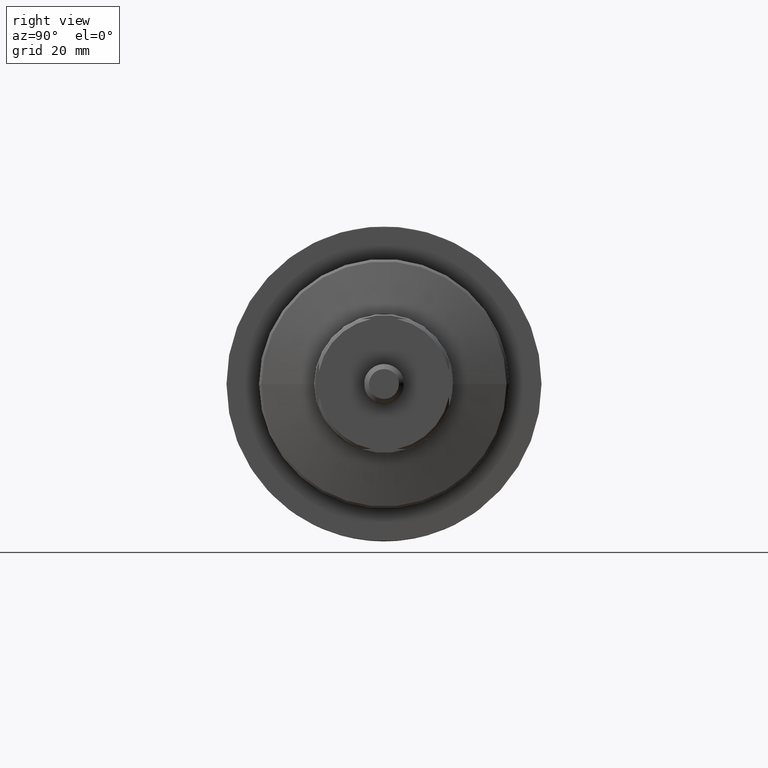
[diagram: clean part render]
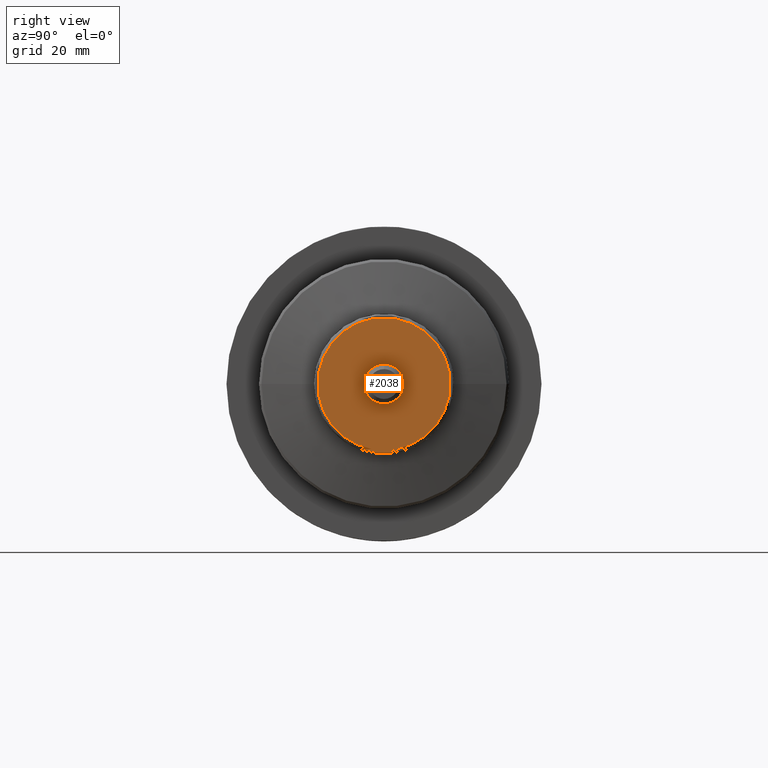
[diagram: same view with one face highlighted and labeled with its STEP entity id]
A machine part, right view. The second image highlights one B-rep face of the part: STEP entity #2038.
In plain terms, the highlighted planar face has unit normal (-1, -0, 0).
Its self-contained STEP definition (entity closure, byte-faithful):
#7 = AXIS2_PLACEMENT_3D ( 'NONE', #2759, #2353, #254 ) ;
#17 = DIRECTION ( 'NONE',  ( 0.000000000000000000, -3.872912908332386132E-16, 1.000000000000000000 ) ) ;
#44 = ORIENTED_EDGE ( 'NONE', *, *, #1556, .F. ) ;
#79 = ORIENTED_EDGE ( 'NONE', *, *, #1916, .F. ) ;
#95 = VECTOR ( 'NONE', #17, 1000.000000000000000 ) ;
#114 = EDGE_CURVE ( 'NONE', #1419, #2105, #1397, .T. ) ;
#155 = CARTESIAN_POINT ( 'NONE',  ( 104.0000000000000568, 2.561737691489861746, 13.00000000000000000 ) ) ;
#163 = LINE ( 'NONE', #2048, #2071 ) ;
#167 = LINE ( 'NONE', #1841, #2514 ) ;
#254 = DIRECTION ( 'NONE',  ( 1.069542322069065801E-17, -1.000000000000000000, 0.000000000000000000 ) ) ;
#295 = CARTESIAN_POINT ( 'NONE',  ( 104.0000000000000142, -13.00000000000171951, -2.561737691481324575 ) ) ;
#316 = AXIS2_PLACEMENT_3D ( 'NONE', #1639, #1883, #349 ) ;
#325 = AXIS2_PLACEMENT_3D ( 'NONE', #552, #2445, #2490 ) ;
#330 = ORIENTED_EDGE ( 'NONE', *, *, #2259, .T. ) ;
#349 = DIRECTION ( 'NONE',  ( 0.000000000000000000, -1.000000000000000000, 0.000000000000000000 ) ) ;
#379 = VERTEX_POINT ( 'NONE', #2222 ) ;
#445 = AXIS2_PLACEMENT_3D ( 'NONE', #2280, #2715, #1647 ) ;
#511 = VERTEX_POINT ( 'NONE', #2286 ) ;
#552 = CARTESIAN_POINT ( 'NONE',  ( 104.0000000000000142, 1.112324014951828568E-15, 0.000000000000000000 ) ) ;
#643 = VERTEX_POINT ( 'NONE', #155 ) ;
#644 = CARTESIAN_POINT ( 'NONE',  ( 103.9999999999997868, -13.00000000000171951, -4.479118216792240759 ) ) ;
#645 = DIRECTION ( 'NONE',  ( 0.000000000000000000, -1.000000000000000000, 0.000000000000000000 ) ) ;
#726 = DIRECTION ( 'NONE',  ( 1.000000000000000000, 1.069542322069065801E-17, 0.000000000000000000 ) ) ;
#771 = DIRECTION ( 'NONE',  ( -1.549165163332954492E-14, -1.000000000000000000, -1.936456454166193066E-16 ) ) ;
#789 = LINE ( 'NONE', #2472, #1365 ) ;
#793 = DIRECTION ( 'NONE',  ( 0.000000000000000000, -1.000000000000000000, 0.000000000000000000 ) ) ;
#852 = ORIENTED_EDGE ( 'NONE', *, *, #2570, .T. ) ;
#868 = FACE_BOUND ( 'NONE', #1433, .T. ) ;
#911 = CIRCLE ( 'NONE', #1715, 3.500000000000374811 ) ;
#944 = CARTESIAN_POINT ( 'NONE',  ( 104.0000000000000142, 1.112324014951828568E-15, 0.000000000000000000 ) ) ;
#1018 = ORIENTED_EDGE ( 'NONE', *, *, #2357, .T. ) ;
#1107 = VERTEX_POINT ( 'NONE', #1496 ) ;
#1119 = VERTEX_POINT ( 'NONE', #2169 ) ;
#1181 = ORIENTED_EDGE ( 'NONE', *, *, #1380, .T. ) ;
#1209 = VERTEX_POINT ( 'NONE', #1817 ) ;
#1289 = EDGE_LOOP ( 'NONE', ( #1717, #2289, #2019, #1181, #79, #2009, #44, #330 ) ) ;
#1312 = CARTESIAN_POINT ( 'NONE',  ( 104.0000000000002274, 12.99999999999827871, -2.561737691498814584 ) ) ;
#1313 = CIRCLE ( 'NONE', #316, 13.24999999999999112 ) ;
#1317 = LINE ( 'NONE', #644, #95 ) ;
#1365 = VECTOR ( 'NONE', #2090, 1000.000000000000000 ) ;
#1373 = CARTESIAN_POINT ( 'NONE',  ( 103.9999999999999716, -2.561737691490076685, -13.00000000000000000 ) ) ;
#1380 = EDGE_CURVE ( 'NONE', #1209, #643, #1313, .T. ) ;
#1397 = CIRCLE ( 'NONE', #445, 13.25000000000003197 ) ;
#1419 = VERTEX_POINT ( 'NONE', #2063 ) ;
#1433 = EDGE_LOOP ( 'NONE', ( #852, #1018 ) ) ;
#1458 = CIRCLE ( 'NONE', #325, 13.25000000000003197 ) ;
#1465 = EDGE_CURVE ( 'NONE', #1419, #1716, #167, .T. ) ;
#1496 = CARTESIAN_POINT ( 'NONE',  ( 104.0000000000000142, -3.500000000002220002, 4.286263797016344511E-16 ) ) ;
#1506 = CIRCLE ( 'NONE', #1769, 13.24999999999999112 ) ;
#1556 = EDGE_CURVE ( 'NONE', #2724, #379, #1317, .T. ) ;
#1630 = AXIS2_PLACEMENT_3D ( 'NONE', #2763, #2542, #793 ) ;
#1639 = CARTESIAN_POINT ( 'NONE',  ( 104.0000000000000142, 1.112324014951828568E-15, 0.000000000000000000 ) ) ;
#1647 = DIRECTION ( 'NONE',  ( 0.000000000000000000, -1.000000000000000000, 0.000000000000000000 ) ) ;
#1702 = PLANE ( 'NONE',  #7 ) ;
#1715 = AXIS2_PLACEMENT_3D ( 'NONE', #2574, #2372, #645 ) ;
#1716 = VERTEX_POINT ( 'NONE', #1373 ) ;
#1717 = ORIENTED_EDGE ( 'NONE', *, *, #1465, .F. ) ;
#1769 = AXIS2_PLACEMENT_3D ( 'NONE', #944, #726, #1819 ) ;
#1817 = CARTESIAN_POINT ( 'NONE',  ( 104.0000000000000142, 12.99999999999827516, 2.561737691498608083 ) ) ;
#1819 = DIRECTION ( 'NONE',  ( 0.000000000000000000, -1.000000000000000000, 0.000000000000000000 ) ) ;
#1841 = CARTESIAN_POINT ( 'NONE',  ( 104.0000000000000853, 4.479118216790515916, -12.99999999999999822 ) ) ;
#1877 = DIRECTION ( 'NONE',  ( 0.000000000000000000, 3.872912908332386132E-16, -1.000000000000000000 ) ) ;
#1883 = DIRECTION ( 'NONE',  ( 1.000000000000000000, 1.069542322069065801E-17, 0.000000000000000000 ) ) ;
#1916 = EDGE_CURVE ( 'NONE', #511, #643, #789, .T. ) ;
#1953 = EDGE_CURVE ( 'NONE', #1209, #2105, #163, .T. ) ;
#2009 = ORIENTED_EDGE ( 'NONE', *, *, #2307, .T. ) ;
#2019 = ORIENTED_EDGE ( 'NONE', *, *, #1953, .F. ) ;
#2038 = ADVANCED_FACE ( 'NONE', ( #868, #2367 ), #1702, .F. ) ;
#2048 = CARTESIAN_POINT ( 'NONE',  ( 104.0000000000002274, 12.99999999999827516, 4.479118216792238982 ) ) ;
#2063 = CARTESIAN_POINT ( 'NONE',  ( 104.0000000000000568, 2.561737691490083790, -12.99999999999999822 ) ) ;
#2071 = VECTOR ( 'NONE', #1877, 1000.000000000000000 ) ;
#2072 = CIRCLE ( 'NONE', #1630, 3.500000000000374811 ) ;
#2090 = DIRECTION ( 'NONE',  ( 1.549165163332954492E-14, 1.000000000000000000, 1.936456454166193066E-16 ) ) ;
#2105 = VERTEX_POINT ( 'NONE', #1312 ) ;
#2169 = CARTESIAN_POINT ( 'NONE',  ( 104.0000000000000142, 3.499999999998645528, 0.000000000000000000 ) ) ;
#2222 = CARTESIAN_POINT ( 'NONE',  ( 103.9999999999997868, -13.00000000000172307, 2.561737691481097645 ) ) ;
#2259 = EDGE_CURVE ( 'NONE', #2724, #1716, #1458, .T. ) ;
#2280 = CARTESIAN_POINT ( 'NONE',  ( 104.0000000000000142, 1.112324014951828568E-15, 0.000000000000000000 ) ) ;
#2286 = CARTESIAN_POINT ( 'NONE',  ( 103.9999999999999716, -2.561737691489853752, 13.00000000000000000 ) ) ;
#2289 = ORIENTED_EDGE ( 'NONE', *, *, #114, .T. ) ;
#2307 = EDGE_CURVE ( 'NONE', #511, #379, #1506, .T. ) ;
#2353 = DIRECTION ( 'NONE',  ( -1.000000000000000000, -1.069542322069065801E-17, 0.000000000000000000 ) ) ;
#2357 = EDGE_CURVE ( 'NONE', #1107, #1119, #2072, .T. ) ;
#2367 = FACE_OUTER_BOUND ( 'NONE', #1289, .T. ) ;
#2372 = DIRECTION ( 'NONE',  ( -1.000000000000000000, -1.069542322069065801E-17, -0.000000000000000000 ) ) ;
#2445 = DIRECTION ( 'NONE',  ( 1.000000000000000000, 1.069542322069065801E-17, 0.000000000000000000 ) ) ;
#2472 = CARTESIAN_POINT ( 'NONE',  ( 103.9999999999999432, -4.479118216793962048, 12.99999999999999822 ) ) ;
#2490 = DIRECTION ( 'NONE',  ( 0.000000000000000000, -1.000000000000000000, 0.000000000000000000 ) ) ;
#2514 = VECTOR ( 'NONE', #771, 1000.000000000000000 ) ;
#2542 = DIRECTION ( 'NONE',  ( -1.000000000000000000, -1.069542322069065801E-17, -0.000000000000000000 ) ) ;
#2570 = EDGE_CURVE ( 'NONE', #1119, #1107, #911, .T. ) ;
#2574 = CARTESIAN_POINT ( 'NONE',  ( 104.0000000000000142, -1.723555391471920102E-12, 0.000000000000000000 ) ) ;
#2715 = DIRECTION ( 'NONE',  ( 1.000000000000000000, 1.069542322069065801E-17, 0.000000000000000000 ) ) ;
#2724 = VERTEX_POINT ( 'NONE', #295 ) ;
#2759 = CARTESIAN_POINT ( 'NONE',  ( 104.0000000000000142, 8.673617379884035472E-16, 0.000000000000000000 ) ) ;
#2763 = CARTESIAN_POINT ( 'NONE',  ( 104.0000000000000142, -1.723555391471920102E-12, 0.000000000000000000 ) ) ;